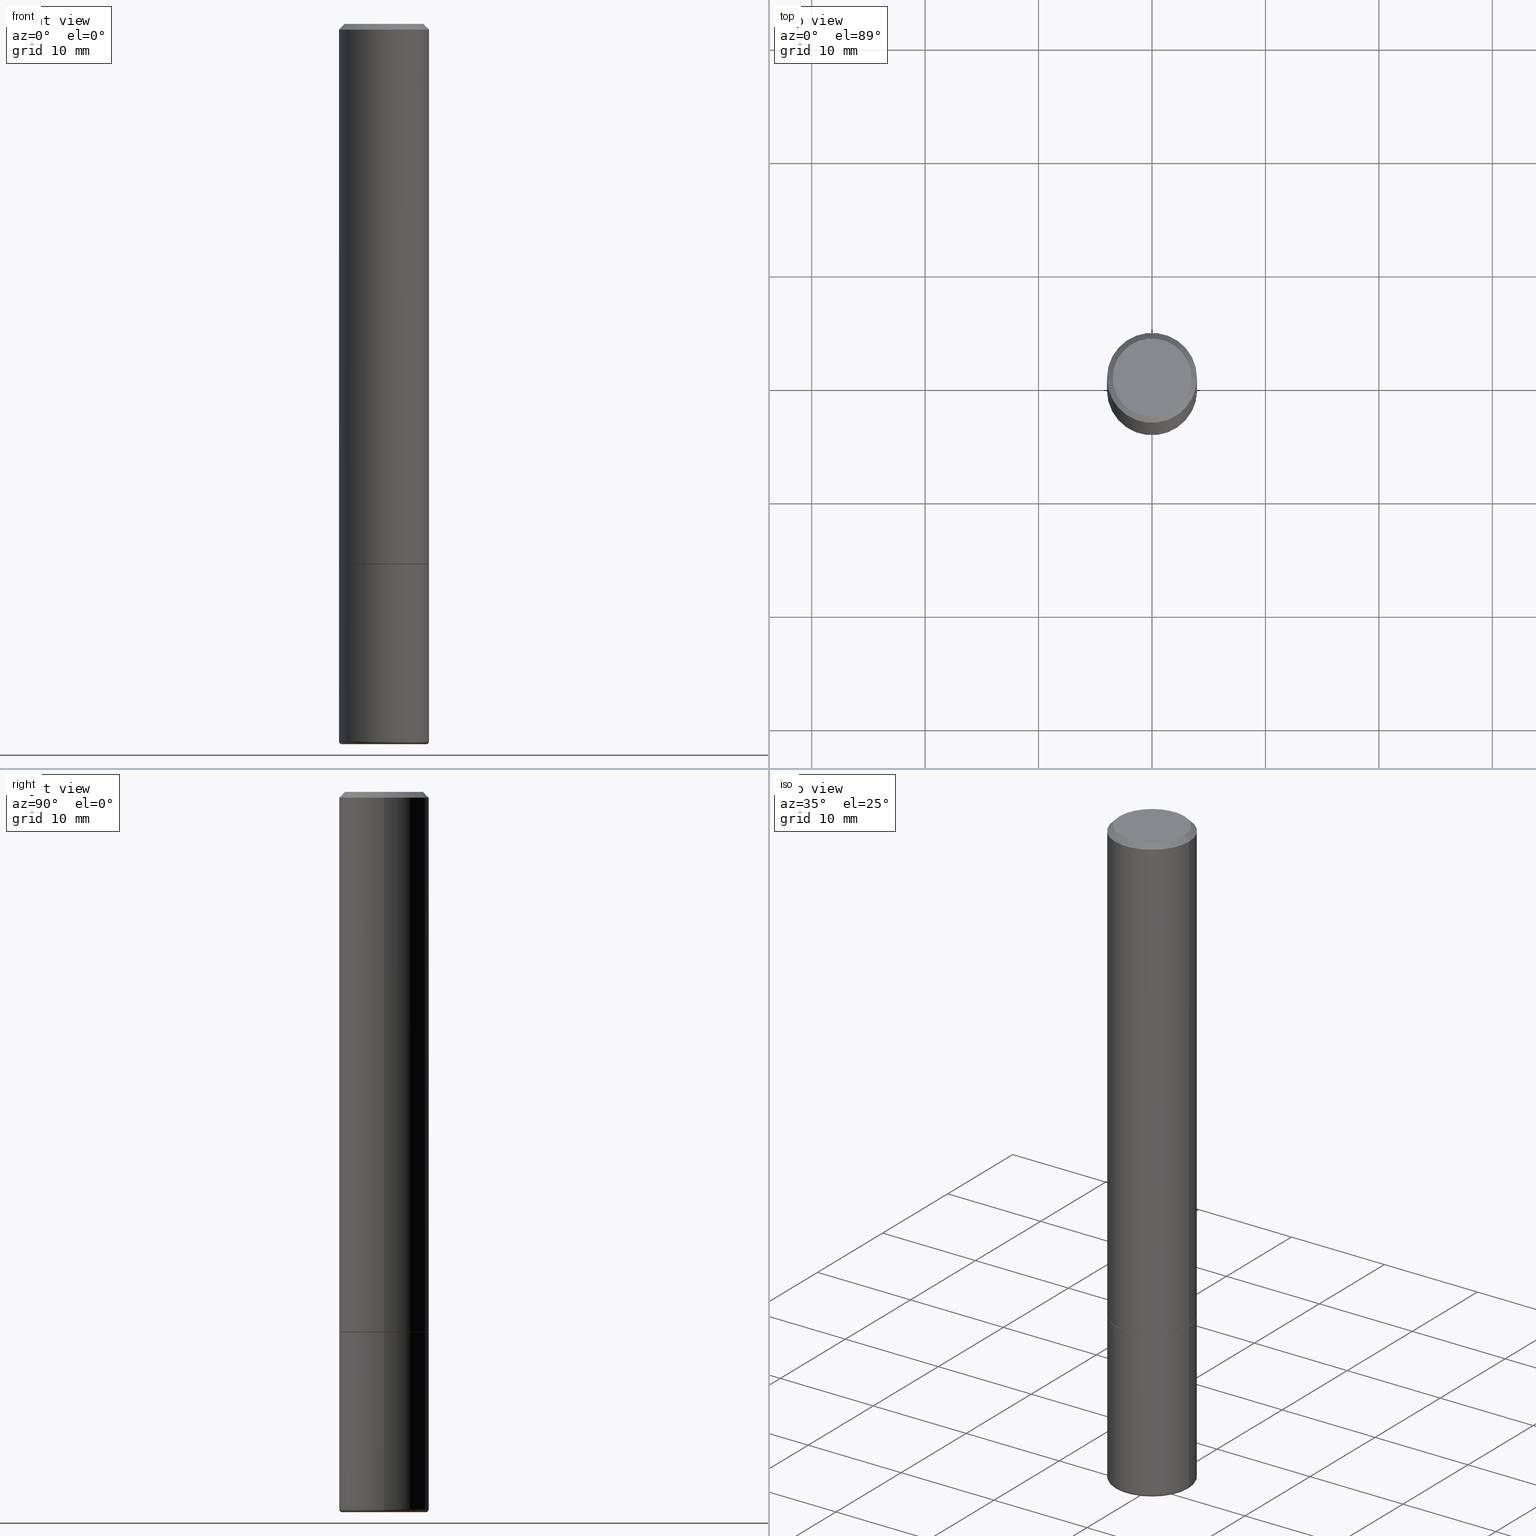
[diagram: canonical four-view strip — front | top / right | iso, engineering-drawing reading convention]
A machine part, canonical four-view strip (front | top / right | iso — engineering-drawing reading convention). The complete STEP part file that produces these views, byte-faithful:
ISO-10303-21;
HEADER;
FILE_DESCRIPTION (( 'STEP AP203' ),
    '1' );
FILE_NAME ('38807.STEP',
    '2024-03-03T13:57:29',
    ( '' ),
    ( '' ),
    'SwSTEP 2.0',
    'SolidWorks 2023',
    '' );
FILE_SCHEMA (( 'CONFIG_CONTROL_DESIGN' ));
ENDSEC;

DATA;
#1 = LOCAL_TIME ( 8, 57, 29.00000000000000000, #282 ) ;
#2 = APPROVAL_ROLE ( '' ) ;
#3 = EDGE_CURVE ( 'NONE', #193, #10, #168, .T. ) ;
#4 = PERSON_AND_ORGANIZATION ( #118, #250 ) ;
#5 = AXIS2_PLACEMENT_3D ( 'NONE', #303, #242, #9 ) ;
#6 = EDGE_CURVE ( 'NONE', #77, #85, #248, .T. ) ;
#7 = ORIENTED_EDGE ( 'NONE', *, *, #260, .T. ) ;
#8 = ORIENTED_EDGE ( 'NONE', *, *, #15, .F. ) ;
#9 = DIRECTION ( 'NONE',  ( 1.000000000000000000, -6.982962677686266711E-15, 4.876176775795936353E-29 ) ) ;
#10 = VERTEX_POINT ( 'NONE', #342 ) ;
#11 = DIRECTION ( 'NONE',  ( 1.000000000000000000, -6.982962677686266711E-15, 4.876176775795936353E-29 ) ) ;
#12 = CIRCLE ( 'NONE', #26, 0.1552499999999999991 ) ;
#13 = EDGE_LOOP ( 'NONE', ( #84, #106 ) ) ;
#14 = DIRECTION ( 'NONE',  ( -2.445468806185136597E-29, 3.491481338843145583E-15, 1.000000000000000000 ) ) ;
#15 = EDGE_CURVE ( 'NONE', #264, #85, #410, .T. ) ;
#16 = VERTEX_POINT ( 'NONE', #61 ) ;
#17 = DIRECTION ( 'NONE',  ( -2.445468806185136597E-29, 3.491481338843145583E-15, 1.000000000000000000 ) ) ;
#18 = CARTESIAN_POINT ( 'NONE',  ( 0.000000000000000000, 0.000000000000000000, 0.000000000000000000 ) ) ;
#19 = DIRECTION ( 'NONE',  ( -2.445468806185136597E-29, 3.491481338843145583E-15, 1.000000000000000000 ) ) ;
#20 = FACE_OUTER_BOUND ( 'NONE', #327, .T. ) ;
#21 = DIRECTION ( 'NONE',  ( -2.445468806185136597E-29, 3.491481338843145583E-15, 1.000000000000000000 ) ) ;
#22 =( NAMED_UNIT ( * ) SI_UNIT ( $, .STERADIAN. ) SOLID_ANGLE_UNIT ( ) );
#23 = ORIENTED_EDGE ( 'NONE', *, *, #3, .T. ) ;
#24 = CALENDAR_DATE ( 2024, 3, 3 ) ;
#25 = DIRECTION ( 'NONE',  ( 1.000000000000000000, -6.982962677686266711E-15, 4.876176775795936353E-29 ) ) ;
#26 = AXIS2_PLACEMENT_3D ( 'NONE', #404, #270, #398 ) ;
#27 = CARTESIAN_POINT ( 'NONE',  ( 0.000000000000000000, 0.000000000000000000, 0.000000000000000000 ) ) ;
#28 = DIRECTION ( 'NONE',  ( 2.445468806185136597E-29, -3.491481338843145583E-15, -1.000000000000000000 ) ) ;
#29 = PERSON_AND_ORGANIZATION ( #118, #250 ) ;
#30 = CARTESIAN_POINT ( 'NONE',  ( 0.1562500000000001388, -1.091087918388480160E-15, 7.619026212181157383E-30 ) ) ;
#31 = PERSON_AND_ORGANIZATION ( #118, #250 ) ;
#32 = CARTESIAN_POINT ( 'NONE',  ( 9.514286648347541549E-16, 0.1362500000000000377, -4.757143324173787538E-16 ) ) ;
#33 = EDGE_CURVE ( 'NONE', #278, #304, #107, .T. ) ;
#34 = AXIS2_PLACEMENT_3D ( 'NONE', #32, #230, #67 ) ;
#35 = CIRCLE ( 'NONE', #411, 0.009999999999999790307 ) ;
#36 = CARTESIAN_POINT ( 'NONE',  ( 4.585254011597131119E-29, -6.546527510330898707E-15, -1.875000000000000000 ) ) ;
#37 = COORDINATED_UNIVERSAL_TIME_OFFSET ( 5, 0, .BEHIND. ) ;
#38 = CC_DESIGN_PERSON_AND_ORGANIZATION_ASSIGNMENT ( #4, #356, ( #294 ) ) ;
#39 = EDGE_LOOP ( 'NONE', ( #231, #81, #143, #23 ) ) ;
#40 =( GEOMETRIC_REPRESENTATION_CONTEXT ( 3 ) GLOBAL_UNCERTAINTY_ASSIGNED_CONTEXT ( ( #226 ) ) GLOBAL_UNIT_ASSIGNED_CONTEXT ( ( #180, #150, #22 ) ) REPRESENTATION_CONTEXT ( 'NONE', 'WORKASPACE' ) );
#41 = ORIENTED_EDGE ( 'NONE', *, *, #69, .F. ) ;
#42 = CARTESIAN_POINT ( 'NONE',  ( 4.582808542790945516E-29, -6.543036028992054911E-15, -1.874000000000000110 ) ) ;
#43 = VERTEX_POINT ( 'NONE', #119 ) ;
#44 = CARTESIAN_POINT ( 'NONE',  ( -0.1562500000000002220, -2.196209803259299803E-15, -1.874000000000000110 ) ) ;
#45 = ORIENTED_EDGE ( 'NONE', *, *, #160, .T. ) ;
#46 = EDGE_CURVE ( 'NONE', #262, #43, #203, .T. ) ;
#47 = CARTESIAN_POINT ( 'NONE',  ( 0.1562500000000000000, -1.091087918388479174E-15, 7.619026212181150377E-30 ) ) ;
#48 = CC_DESIGN_APPROVAL ( #140, ( #321 ) ) ;
#49 = ORIENTED_EDGE ( 'NONE', *, *, #291, .T. ) ;
#50 = CYLINDRICAL_SURFACE ( 'NONE', #223, 0.1562500000000000000 ) ;
#51 = VERTEX_POINT ( 'NONE', #375 ) ;
#52 = CARTESIAN_POINT ( 'NONE',  ( 4.585254011597131119E-29, -6.546527510330898707E-15, -1.875000000000000000 ) ) ;
#53 = EDGE_CURVE ( 'NONE', #278, #10, #307, .T. ) ;
#54 = DIRECTION ( 'NONE',  ( -2.445468806185136597E-29, 3.491481338843145583E-15, 1.000000000000000000 ) ) ;
#55 = CARTESIAN_POINT ( 'NONE',  ( 0.000000000000000000, 0.000000000000000000, 0.000000000000000000 ) ) ;
#56 = DIRECTION ( 'NONE',  ( -2.445468806185136597E-29, 3.491481338843145583E-15, 1.000000000000000000 ) ) ;
#57 = TOROIDAL_SURFACE ( 'NONE', #289, 0.1462500000000000189, 0.009999999999999790307 ) ;
#58 = DIRECTION ( 'NONE',  ( 1.000000000000000000, -6.982962677686268288E-15, 0.000000000000000000 ) ) ;
#59 = FACE_OUTER_BOUND ( 'NONE', #133, .T. ) ;
#60 =( LENGTH_UNIT ( ) NAMED_UNIT ( * ) SI_UNIT ( $, .METRE. ) );
#61 = CARTESIAN_POINT ( 'NONE',  ( 0.1562500000000000000, -7.637615428719378669E-15, -1.875000000000000000 ) ) ;
#62 = EDGE_CURVE ( 'NONE', #138, #329, #387, .T. ) ;
#63 = LINE ( 'NONE', #79, #124 ) ;
#64 = AXIS2_PLACEMENT_3D ( 'NONE', #279, #54, #312 ) ;
#65 = APPROVAL_PERSON_ORGANIZATION ( #29, #140, #68 ) ;
#66 = APPROVAL_DATE_TIME ( #351, #164 ) ;
#67 = DIRECTION ( 'NONE',  ( -1.000000000000000000, 6.982962677686265922E-15, -4.876176775795935793E-29 ) ) ;
#68 = APPROVAL_ROLE ( '' ) ;
#69 = EDGE_CURVE ( 'NONE', #43, #329, #184, .T. ) ;
#70 = DIRECTION ( 'NONE',  ( -1.000000000000000000, 6.982962677686265922E-15, -4.876176775795935793E-29 ) ) ;
#71 = DESIGN_CONTEXT ( 'detailed design', #361, 'design' ) ;
#72 = FACE_OUTER_BOUND ( 'NONE', #362, .T. ) ;
#73 = AXIS2_PLACEMENT_3D ( 'NONE', #216, #179, #87 ) ;
#74 = SECURITY_CLASSIFICATION_LEVEL ( 'unclassified' ) ;
#75 = AXIS2_PLACEMENT_3D ( 'NONE', #334, #268, #265 ) ;
#76 = CC_DESIGN_PERSON_AND_ORGANIZATION_ASSIGNMENT ( #190, #295, ( #321 ) ) ;
#77 = VERTEX_POINT ( 'NONE', #345 ) ;
#78 = EDGE_LOOP ( 'NONE', ( #369, #165, #377, #414 ) ) ;
#79 = CARTESIAN_POINT ( 'NONE',  ( -0.1552499999999999991, -5.443409913063343964E-15, -1.875000000000000000 ) ) ;
#80 = VECTOR ( 'NONE', #331, 39.37007874015748143 ) ;
#81 = ORIENTED_EDGE ( 'NONE', *, *, #83, .F. ) ;
#82 = CYLINDRICAL_SURFACE ( 'NONE', #5, 0.1562500000000000000 ) ;
#83 = EDGE_CURVE ( 'NONE', #304, #278, #116, .T. ) ;
#84 = ORIENTED_EDGE ( 'NONE', *, *, #46, .F. ) ;
#85 = VERTEX_POINT ( 'NONE', #121 ) ;
#86 = PRODUCT ( '38807', '38807', '', ( #122 ) ) ;
#87 = DIRECTION ( 'NONE',  ( -1.000000000000000000, 6.982962677686268288E-15, 0.000000000000000000 ) ) ;
#88 = ADVANCED_FACE ( 'NONE', ( #59 ), #194, .T. ) ;
#89 = DIRECTION ( 'NONE',  ( 1.000000000000000000, -6.982962677686269077E-15, 0.000000000000000000 ) ) ;
#90 = CARTESIAN_POINT ( 'NONE',  ( 4.585254011597131119E-29, -6.546527510330898707E-15, -1.875000000000000000 ) ) ;
#91 = CARTESIAN_POINT ( 'NONE',  ( 6.113672015462840371E-29, -8.728703347107863365E-15, -2.499999999999999556 ) ) ;
#92 = PERSON_AND_ORGANIZATION_ROLE ( 'creator' ) ;
#93 = DIRECTION ( 'NONE',  ( 1.000000000000000000, -6.982962677686268288E-15, 0.000000000000000000 ) ) ;
#94 = AXIS2_PLACEMENT_3D ( 'NONE', #371, #305, #11 ) ;
#95 = PERSON_AND_ORGANIZATION ( #118, #250 ) ;
#96 = DIRECTION ( 'NONE',  ( -2.445468806185136597E-29, 3.491481338843145583E-15, 1.000000000000000000 ) ) ;
#97 = DATE_AND_TIME ( #120, #1 ) ;
#98 = APPLICATION_PROTOCOL_DEFINITION ( 'international standard', 'config_control_design', 1994, #323 ) ;
#99 = AXIS2_PLACEMENT_3D ( 'NONE', #308, #19, #93 ) ;
#100 = AXIS2_PLACEMENT_3D ( 'NONE', #90, #341, #139 ) ;
#101 = DIRECTION ( 'NONE',  ( -2.445468806185136877E-29, 3.491481338843145188E-15, 1.000000000000000000 ) ) ;
#102 = AXIS2_PLACEMENT_3D ( 'NONE', #407, #117, #383 ) ;
#103 = APPROVAL_STATUS ( 'not_yet_approved' ) ;
#104 = LOCAL_TIME ( 8, 57, 29.00000000000000000, #261 ) ;
#105 = EDGE_LOOP ( 'NONE', ( #113, #205 ) ) ;
#106 = ORIENTED_EDGE ( 'NONE', *, *, #237, .F. ) ;
#107 = CIRCLE ( 'NONE', #153, 0.1362500000000000377 ) ;
#108 = LINE ( 'NONE', #253, #330 ) ;
#109 = CIRCLE ( 'NONE', #126, 0.1462500000000000189 ) ;
#110 = ORIENTED_EDGE ( 'NONE', *, *, #33, .F. ) ;
#111 = CYLINDRICAL_SURFACE ( 'NONE', #145, 0.1562500000000001388 ) ;
#112 = ORIENTED_EDGE ( 'NONE', *, *, #46, .T. ) ;
#113 = ORIENTED_EDGE ( 'NONE', *, *, #379, .F. ) ;
#114 = ADVANCED_FACE ( 'NONE', ( #340 ), #275, .T. ) ;
#115 = CARTESIAN_POINT ( 'NONE',  ( 0.000000000000000000, 0.000000000000000000, 0.000000000000000000 ) ) ;
#116 = CIRCLE ( 'NONE', #320, 0.1362500000000000377 ) ;
#117 = DIRECTION ( 'NONE',  ( -2.445468806185136597E-29, 3.491481338843145583E-15, 1.000000000000000000 ) ) ;
#118 = PERSON ( 'UNSPECIFIED', 'UNSPECIFIED', 'UNSPECIFIED', ('UNSPECIFIED'), ('UNSPECIFIED'), ('UNSPECIFIED') ) ;
#119 = CARTESIAN_POINT ( 'NONE',  ( -0.1462500000000000189, -7.636550052576496041E-15, -2.499999999999999556 ) ) ;
#120 = CALENDAR_DATE ( 2024, 3, 3 ) ;
#121 = CARTESIAN_POINT ( 'NONE',  ( 0.1562500000000002220, -7.634123947380535662E-15, -1.874000000000000110 ) ) ;
#122 = MECHANICAL_CONTEXT ( 'NONE', #323, 'mechanical' ) ;
#123 = ADVANCED_FACE ( 'NONE', ( #154 ), #175, .T. ) ;
#124 = VECTOR ( 'NONE', #196, 39.37007874015748143 ) ;
#125 = CARTESIAN_POINT ( 'NONE',  ( 1.263551563285417854E-28, 6.109479132827826125E-16, -2.500000000000000000 ) ) ;
#126 = AXIS2_PLACEMENT_3D ( 'NONE', #368, #210, #401 ) ;
#127 = FACE_OUTER_BOUND ( 'NONE', #300, .T. ) ;
#128 = APPROVAL ( #103, 'UNSPECIFIED' ) ;
#129 = COORDINATED_UNIVERSAL_TIME_OFFSET ( 5, 0, .BEHIND. ) ;
#130 = ADVANCED_FACE ( 'NONE', ( #151 ), #281, .T. ) ;
#131 = AXIS2_PLACEMENT_3D ( 'NONE', #91, #96, #348 ) ;
#132 = ORIENTED_EDGE ( 'NONE', *, *, #299, .T. ) ;
#133 = EDGE_LOOP ( 'NONE', ( #41, #390, #167, #171 ) ) ;
#134 = CARTESIAN_POINT ( 'NONE',  ( -0.1362500000000000377, 9.863434782231852123E-16, -6.775751096333141285E-30 ) ) ;
#135 = VERTEX_POINT ( 'NONE', #416 ) ;
#136 = FACE_OUTER_BOUND ( 'NONE', #197, .T. ) ;
#137 = AXIS2_PLACEMENT_3D ( 'NONE', #52, #144, #276 ) ;
#138 = VERTEX_POINT ( 'NONE', #222 ) ;
#139 = DIRECTION ( 'NONE',  ( 1.000000000000000000, -6.982962677686269077E-15, 0.000000000000000000 ) ) ;
#140 = APPROVAL ( #349, 'UNSPECIFIED' ) ;
#141 = EDGE_LOOP ( 'NONE', ( #367, #132, #191, #8 ) ) ;
#142 = FACE_OUTER_BOUND ( 'NONE', #105, .T. ) ;
#143 = ORIENTED_EDGE ( 'NONE', *, *, #202, .T. ) ;
#144 = DIRECTION ( 'NONE',  ( -2.438088387897960049E-29, 3.491481338843145188E-15, 1.000000000000000000 ) ) ;
#145 = AXIS2_PLACEMENT_3D ( 'NONE', #115, #172, #396 ) ;
#146 = ORIENTED_EDGE ( 'NONE', *, *, #177, .T. ) ;
#147 = LENGTH_MEASURE_WITH_UNIT ( LENGTH_MEASURE( 0.02539999999999999897 ), #60 );
#148 = DIRECTION ( 'NONE',  ( 0.7071067811865957564, -2.468850131082761932E-15, 0.7071067811864992780 ) ) ;
#149 = ADVANCED_FACE ( 'NONE', ( #72 ), #322, .F. ) ;
#150 =( NAMED_UNIT ( * ) PLANE_ANGLE_UNIT ( ) SI_UNIT ( $, .RADIAN. ) );
#151 = FACE_OUTER_BOUND ( 'NONE', #13, .T. ) ;
#152 = DIRECTION ( 'NONE',  ( 1.000000000000000000, 0.000000000000000000, 0.000000000000000000 ) ) ;
#153 = AXIS2_PLACEMENT_3D ( 'NONE', #244, #56, #314 ) ;
#154 = FACE_OUTER_BOUND ( 'NONE', #39, .T. ) ;
#155 = DIRECTION ( 'NONE',  ( -2.445468806185136597E-29, 3.491481338843145583E-15, 1.000000000000000000 ) ) ;
#156 = ADVANCED_FACE ( 'NONE', ( #259 ), #354, .F. ) ;
#157 = FACE_OUTER_BOUND ( 'NONE', #199, .T. ) ;
#158 = FACE_OUTER_BOUND ( 'NONE', #335, .T. ) ;
#159 = AXIS2_PLACEMENT_3D ( 'NONE', #186, #364, #255 ) ;
#160 = EDGE_CURVE ( 'NONE', #10, #193, #418, .T. ) ;
#161 = DATE_AND_TIME ( #389, #104 ) ;
#162 = ORIENTED_EDGE ( 'NONE', *, *, #3, .F. ) ;
#163 = APPROVAL_PERSON_ORGANIZATION ( #384, #164, #417 ) ;
#164 = APPROVAL ( #406, 'UNSPECIFIED' ) ;
#165 = ORIENTED_EDGE ( 'NONE', *, *, #386, .T. ) ;
#166 = DIRECTION ( 'NONE',  ( 1.000000000000000000, -6.982962677686265922E-15, 4.883557194083112340E-29 ) ) ;
#167 = ORIENTED_EDGE ( 'NONE', *, *, #358, .T. ) ;
#168 = CIRCLE ( 'NONE', #102, 0.1562500000000000278 ) ;
#169 = CARTESIAN_POINT ( 'NONE',  ( 0.1462500000000000189, -9.749961638719478451E-15, -2.499999999999999556 ) ) ;
#170 = ORIENTED_EDGE ( 'NONE', *, *, #379, .T. ) ;
#171 = ORIENTED_EDGE ( 'NONE', *, *, #284, .F. ) ;
#172 = DIRECTION ( 'NONE',  ( -2.445468806185136597E-29, 3.491481338843145583E-15, 1.000000000000000000 ) ) ;
#173 = DIRECTION ( 'NONE',  ( -2.445468806185136597E-29, 3.491481338843145583E-15, 1.000000000000000000 ) ) ;
#174 = LINE ( 'NONE', #47, #283 ) ;
#175 = CONICAL_SURFACE ( 'NONE', #73, 0.1562500000000000278, 0.7853981633974472798 ) ;
#176 = DIRECTION ( 'NONE',  ( 0.7071067811865467956, -7.319954787623254468E-15, -0.7071067811865482389 ) ) ;
#177 = EDGE_CURVE ( 'NONE', #85, #10, #317, .T. ) ;
#178 = DIRECTION ( 'NONE',  ( -2.445468806185136877E-29, 3.491481338843145188E-15, 1.000000000000000000 ) ) ;
#179 = DIRECTION ( 'NONE',  ( 2.445468806185136597E-29, -3.491481338843145583E-15, -1.000000000000000000 ) ) ;
#180 =( CONVERSION_BASED_UNIT ( 'INCH', #147 ) LENGTH_UNIT ( ) NAMED_UNIT ( #208 ) );
#181 = CARTESIAN_POINT ( 'NONE',  ( -0.1462500000000000189, -7.654619782670285257E-15, -2.489999999999999769 ) ) ;
#182 = DIRECTION ( 'NONE',  ( -6.982962677686266711E-15, -1.000000000000000000, 3.491481338843145583E-15 ) ) ;
#183 = ADVANCED_FACE ( 'NONE', ( #158 ), #254, .T. ) ;
#184 = CIRCLE ( 'NONE', #292, 0.009999999999999790307 ) ;
#185 = DATE_TIME_ROLE ( 'creation_date' ) ;
#186 = CARTESIAN_POINT ( 'NONE',  ( 4.890937612370281041E-31, -6.982962677686302702E-17, -0.02000000000000003511 ) ) ;
#187 = DIRECTION ( 'NONE',  ( -1.000000000000000000, 6.982962677686268288E-15, 0.000000000000000000 ) ) ;
#188 = AXIS2_PLACEMENT_3D ( 'NONE', #198, #14, #89 ) ;
#189 = EDGE_CURVE ( 'NONE', #51, #264, #63, .T. ) ;
#190 = PERSON_AND_ORGANIZATION ( #118, #250 ) ;
#191 = ORIENTED_EDGE ( 'NONE', *, *, #6, .T. ) ;
#192 = CC_DESIGN_DATE_AND_TIME_ASSIGNMENT ( #363, #256, ( #294 ) ) ;
#193 = VERTEX_POINT ( 'NONE', #350 ) ;
#194 = TOROIDAL_SURFACE ( 'NONE', #365, 0.1462500000000000189, 0.009999999999999790307 ) ;
#195 = CC_DESIGN_APPROVAL ( #128, ( #294 ) ) ;
#196 = DIRECTION ( 'NONE',  ( -0.7071067811865957564, 7.493145998870527710E-15, 0.7071067811864992780 ) ) ;
#197 = EDGE_LOOP ( 'NONE', ( #397, #273, #146, #162 ) ) ;
#198 = CARTESIAN_POINT ( 'NONE',  ( 4.585254011597131119E-29, -6.546527510330898707E-15, -1.875000000000000000 ) ) ;
#199 = EDGE_LOOP ( 'NONE', ( #405, #392, #7, #266 ) ) ;
#200 = DIRECTION ( 'NONE',  ( -2.445468806185136597E-29, 3.491481338843145583E-15, 1.000000000000000000 ) ) ;
#201 = ORIENTED_EDGE ( 'NONE', *, *, #6, .F. ) ;
#202 = EDGE_CURVE ( 'NONE', #304, #193, #288, .T. ) ;
#203 = CIRCLE ( 'NONE', #131, 0.1462500000000000189 ) ;
#204 = FACE_OUTER_BOUND ( 'NONE', #218, .T. ) ;
#205 = ORIENTED_EDGE ( 'NONE', *, *, #299, .F. ) ;
#206 = MANIFOLD_SOLID_BREP ( 'Body-Move/Copy2[1]', #336 ) ;
#207 = PLANE ( 'NONE',  #137 ) ;
#208 = DIMENSIONAL_EXPONENTS ( 1.000000000000000000, 0.000000000000000000, 0.000000000000000000, 0.000000000000000000, 0.000000000000000000, 0.000000000000000000, 0.000000000000000000 ) ;
#209 = ORIENTED_EDGE ( 'NONE', *, *, #33, .T. ) ;
#210 = DIRECTION ( 'NONE',  ( -2.445468806185136597E-29, 3.491481338843145583E-15, 1.000000000000000000 ) ) ;
#211 = EDGE_CURVE ( 'NONE', #85, #264, #309, .T. ) ;
#212 = ORIENTED_EDGE ( 'NONE', *, *, #291, .F. ) ;
#213 = MANIFOLD_SOLID_BREP ( 'Body-Move/Copy2[2]', #394 ) ;
#214 = AXIS2_PLACEMENT_3D ( 'NONE', #36, #385, #70 ) ;
#215 = ADVANCED_BREP_SHAPE_REPRESENTATION ( '38807', ( #206, #213, #277 ), #40 ) ;
#216 = CARTESIAN_POINT ( 'NONE',  ( 4.890937612370281041E-31, -6.982962677686302702E-17, -0.02000000000000003511 ) ) ;
#217 = DIRECTION ( 'NONE',  ( -2.445468806185136597E-29, 3.491481338843145583E-15, 1.000000000000000000 ) ) ;
#218 = EDGE_LOOP ( 'NONE', ( #269, #366, #212, #400 ) ) ;
#219 = ADVANCED_FACE ( 'NONE', ( #127 ), #57, .T. ) ;
#220 = CARTESIAN_POINT ( 'NONE',  ( 4.890937612370281041E-31, -6.982962677686302702E-17, -0.02000000000000003511 ) ) ;
#221 = PERSON_AND_ORGANIZATION_ROLE ( 'design_owner' ) ;
#222 = CARTESIAN_POINT ( 'NONE',  ( 0.1562499999999998612, -9.784876452107911678E-15, -2.489999999999999769 ) ) ;
#223 = AXIS2_PLACEMENT_3D ( 'NONE', #55, #17, #236 ) ;
#224 = CALENDAR_DATE ( 2024, 3, 3 ) ;
#225 = CARTESIAN_POINT ( 'NONE',  ( -0.1562500000000000278, 1.021258291611616467E-15, -0.02000000000000003511 ) ) ;
#226 = UNCERTAINTY_MEASURE_WITH_UNIT (LENGTH_MEASURE( 1.000000000000000082E-05 ), #180, 'distance_accuracy_value', 'NONE');
#227 = LOCAL_TIME ( 8, 57, 29.00000000000000000, #378 ) ;
#228 = ADVANCED_FACE ( 'NONE', ( #157 ), #82, .T. ) ;
#229 = ORIENTED_EDGE ( 'NONE', *, *, #211, .F. ) ;
#230 = DIRECTION ( 'NONE',  ( 2.438088387897960049E-29, -3.491481338843145188E-15, -1.000000000000000000 ) ) ;
#231 = ORIENTED_EDGE ( 'NONE', *, *, #53, .F. ) ;
#232 = AXIS2_PLACEMENT_3D ( 'NONE', #42, #319, #297 ) ;
#233 = CIRCLE ( 'NONE', #100, 0.1562500000000000000 ) ;
#234 = DIRECTION ( 'NONE',  ( -2.445468806185136877E-29, 3.491481338843145188E-15, 1.000000000000000000 ) ) ;
#235 = EDGE_LOOP ( 'NONE', ( #395, #209 ) ) ;
#236 = DIRECTION ( 'NONE',  ( 1.000000000000000000, -6.982962677686266711E-15, 4.876176775795936353E-29 ) ) ;
#237 = EDGE_CURVE ( 'NONE', #43, #262, #109, .T. ) ;
#238 = ORIENTED_EDGE ( 'NONE', *, *, #358, .F. ) ;
#239 = CARTESIAN_POINT ( 'NONE',  ( 0.1362500000000000377, -1.038262645562518322E-15, 6.957025900226697878E-30 ) ) ;
#240 = CARTESIAN_POINT ( 'NONE',  ( 6.089217327400989947E-29, -8.693788533719431716E-15, -2.489999999999999769 ) ) ;
#241 = VECTOR ( 'NONE', #148, 39.37007874015748143 ) ;
#242 = DIRECTION ( 'NONE',  ( -2.445468806185136597E-29, 3.491481338843145583E-15, 1.000000000000000000 ) ) ;
#243 = CONICAL_SURFACE ( 'NONE', #302, 0.1552499999999999991, 0.7853981633975165577 ) ;
#244 = CARTESIAN_POINT ( 'NONE',  ( 0.000000000000000000, 0.000000000000000000, 0.000000000000000000 ) ) ;
#245 = CC_DESIGN_PERSON_AND_ORGANIZATION_ASSIGNMENT ( #247, #221, ( #86 ) ) ;
#246 = CARTESIAN_POINT ( 'NONE',  ( 4.582808542790945516E-29, -6.543036028992054911E-15, -1.874000000000000110 ) ) ;
#247 = PERSON_AND_ORGANIZATION ( #118, #250 ) ;
#248 = LINE ( 'NONE', #380, #241 ) ;
#249 = AXIS2_PLACEMENT_3D ( 'NONE', #246, #21, #402 ) ;
#250 = ORGANIZATION ( 'UNSPECIFIED', 'UNSPECIFIED', '' ) ;
#251 = DIRECTION ( 'NONE',  ( 2.438088387897960049E-29, -3.491481338843145188E-15, -1.000000000000000000 ) ) ;
#252 = CC_DESIGN_DATE_AND_TIME_ASSIGNMENT ( #97, #185, ( #399 ) ) ;
#253 = CARTESIAN_POINT ( 'NONE',  ( -0.1562500000000000000, 1.110223024625156540E-15, -7.685836078523291160E-30 ) ) ;
#254 = CONICAL_SURFACE ( 'NONE', #381, 0.1562500000000000278, 0.7853981633974472798 ) ;
#255 = DIRECTION ( 'NONE',  ( 1.000000000000000000, -6.982962677686266711E-15, 0.000000000000000000 ) ) ;
#256 = DATE_TIME_ROLE ( 'classification_date' ) ;
#257 = DIRECTION ( 'NONE',  ( -1.000000000000000000, 6.982962677686265922E-15, -4.876176775795935793E-29 ) ) ;
#258 = APPROVAL_DATE_TIME ( #355, #140 ) ;
#259 = FACE_OUTER_BOUND ( 'NONE', #235, .T. ) ;
#260 = EDGE_CURVE ( 'NONE', #138, #16, #174, .T. ) ;
#261 = COORDINATED_UNIVERSAL_TIME_OFFSET ( 5, 0, .BEHIND. ) ;
#262 = VERTEX_POINT ( 'NONE', #169 ) ;
#263 = CALENDAR_DATE ( 2024, 3, 3 ) ;
#264 = VERTEX_POINT ( 'NONE', #44 ) ;
#265 = DIRECTION ( 'NONE',  ( 1.000000000000000000, -6.982962677686270655E-15, 0.000000000000000000 ) ) ;
#266 = ORIENTED_EDGE ( 'NONE', *, *, #274, .F. ) ;
#267 = LOCAL_TIME ( 8, 57, 29.00000000000000000, #129 ) ;
#268 = DIRECTION ( 'NONE',  ( -2.445468806185136597E-29, 3.491481338843145583E-15, 1.000000000000000000 ) ) ;
#269 = ORIENTED_EDGE ( 'NONE', *, *, #62, .T. ) ;
#270 = DIRECTION ( 'NONE',  ( -2.445468806185136597E-29, 3.491481338843145583E-15, 1.000000000000000000 ) ) ;
#271 = ORIENTED_EDGE ( 'NONE', *, *, #69, .T. ) ;
#272 = CYLINDRICAL_SURFACE ( 'NONE', #94, 0.1562500000000001388 ) ;
#273 = ORIENTED_EDGE ( 'NONE', *, *, #15, .T. ) ;
#274 = EDGE_CURVE ( 'NONE', #135, #16, #315, .T. ) ;
#275 = CONICAL_SURFACE ( 'NONE', #99, 0.1552499999999999991, 0.7853981633975165577 ) ;
#276 = DIRECTION ( 'NONE',  ( 1.000000000000000000, -6.982962677686265922E-15, 4.876176775795935793E-29 ) ) ;
#277 = AXIS2_PLACEMENT_3D ( 'NONE', #27, #347, #152 ) ;
#278 = VERTEX_POINT ( 'NONE', #239 ) ;
#279 = CARTESIAN_POINT ( 'NONE',  ( 6.089217327400989947E-29, -8.693788533719431716E-15, -2.489999999999999769 ) ) ;
#280 = APPLICATION_PROTOCOL_DEFINITION ( 'international standard', 'config_control_design', 1994, #361 ) ;
#281 = PLANE ( 'NONE',  #301 ) ;
#282 = COORDINATED_UNIVERSAL_TIME_OFFSET ( 5, 0, .BEHIND. ) ;
#283 = VECTOR ( 'NONE', #234, 39.37007874015748143 ) ;
#284 = EDGE_CURVE ( 'NONE', #329, #138, #403, .T. ) ;
#285 = CARTESIAN_POINT ( 'NONE',  ( 0.1562500000000000278, -1.141782438928665105E-15, -0.02000000000000003511 ) ) ;
#286 = LINE ( 'NONE', #415, #374 ) ;
#287 = DIRECTION ( 'NONE',  ( -2.445468806185136877E-29, 3.491481338843145188E-15, 1.000000000000000000 ) ) ;
#288 = LINE ( 'NONE', #225, #80 ) ;
#289 = AXIS2_PLACEMENT_3D ( 'NONE', #376, #200, #166 ) ;
#290 = LOCAL_TIME ( 8, 57, 29.00000000000000000, #37 ) ;
#291 = EDGE_CURVE ( 'NONE', #16, #135, #233, .T. ) ;
#292 = AXIS2_PLACEMENT_3D ( 'NONE', #181, #311, #372 ) ;
#293 = ORIENTED_EDGE ( 'NONE', *, *, #189, .T. ) ;
#294 = SECURITY_CLASSIFICATION ( '', '', #74 ) ;
#295 = PERSON_AND_ORGANIZATION_ROLE ( 'creator' ) ;
#296 = ORIENTED_EDGE ( 'NONE', *, *, #274, .T. ) ;
#297 = DIRECTION ( 'NONE',  ( 1.000000000000000000, -6.982962677686265922E-15, 0.000000000000000000 ) ) ;
#298 = ORIENTED_EDGE ( 'NONE', *, *, #53, .T. ) ;
#299 = EDGE_CURVE ( 'NONE', #51, #77, #12, .T. ) ;
#300 = EDGE_LOOP ( 'NONE', ( #112, #271, #360, #238 ) ) ;
#301 = AXIS2_PLACEMENT_3D ( 'NONE', #125, #251, #257 ) ;
#302 = AXIS2_PLACEMENT_3D ( 'NONE', #408, #155, #412 ) ;
#303 = CARTESIAN_POINT ( 'NONE',  ( 0.000000000000000000, 0.000000000000000000, 0.000000000000000000 ) ) ;
#304 = VERTEX_POINT ( 'NONE', #134 ) ;
#305 = DIRECTION ( 'NONE',  ( -2.445468806185136597E-29, 3.491481338843145583E-15, 1.000000000000000000 ) ) ;
#306 = ADVANCED_FACE ( 'NONE', ( #333 ), #272, .T. ) ;
#307 = LINE ( 'NONE', #285, #373 ) ;
#308 = CARTESIAN_POINT ( 'NONE',  ( 4.585254011597131119E-29, -6.546527510330898707E-15, -1.875000000000000000 ) ) ;
#309 = CIRCLE ( 'NONE', #232, 0.1562500000000002220 ) ;
#310 = DIRECTION ( 'NONE',  ( 1.000000000000000000, -6.982962677686284854E-15, 0.000000000000000000 ) ) ;
#311 = DIRECTION ( 'NONE',  ( 7.105427357601001859E-15, 1.000000000000000000, -3.491481338843145583E-15 ) ) ;
#312 = DIRECTION ( 'NONE',  ( 1.000000000000000000, -6.982962677686270655E-15, 0.000000000000000000 ) ) ;
#313 = CARTESIAN_POINT ( 'NONE',  ( 4.585254011597131119E-29, -6.546527510330898707E-15, -1.875000000000000000 ) ) ;
#314 = DIRECTION ( 'NONE',  ( 1.000000000000000000, -6.982962677686266711E-15, 4.876176775795936353E-29 ) ) ;
#315 = CIRCLE ( 'NONE', #188, 0.1562500000000000000 ) ;
#316 = ADVANCED_FACE ( 'NONE', ( #136 ), #111, .T. ) ;
#317 = LINE ( 'NONE', #30, #328 ) ;
#318 = PERSON_AND_ORGANIZATION_ROLE ( 'design_supplier' ) ;
#319 = DIRECTION ( 'NONE',  ( -2.445468806185136597E-29, 3.491481338843145583E-15, 1.000000000000000000 ) ) ;
#320 = AXIS2_PLACEMENT_3D ( 'NONE', #18, #339, #25 ) ;
#321 = PRODUCT_DEFINITION_FORMATION_WITH_SPECIFIED_SOURCE ( 'ANY', '', #86, .NOT_KNOWN. ) ;
#322 = PLANE ( 'NONE',  #214 ) ;
#323 = APPLICATION_CONTEXT ( 'configuration controlled 3d designs of mechanical parts and assemblies' ) ;
#324 = SHAPE_DEFINITION_REPRESENTATION ( #388, #215 ) ;
#325 = APPROVAL_DATE_TIME ( #161, #128 ) ;
#326 = CC_DESIGN_PERSON_AND_ORGANIZATION_ASSIGNMENT ( #95, #92, ( #399 ) ) ;
#327 = EDGE_LOOP ( 'NONE', ( #170, #293, #229, #201 ) ) ;
#328 = VECTOR ( 'NONE', #101, 39.37007874015748143 ) ;
#329 = VERTEX_POINT ( 'NONE', #393 ) ;
#330 = VECTOR ( 'NONE', #287, 39.37007874015748143 ) ;
#331 = DIRECTION ( 'NONE',  ( -0.7071067811865467956, 2.468850131082249172E-15, -0.7071067811865482389 ) ) ;
#332 = ORIENTED_EDGE ( 'NONE', *, *, #202, .F. ) ;
#333 = FACE_OUTER_BOUND ( 'NONE', #78, .T. ) ;
#334 = CARTESIAN_POINT ( 'NONE',  ( 6.089217327400989947E-29, -8.693788533719431716E-15, -2.489999999999999769 ) ) ;
#335 = EDGE_LOOP ( 'NONE', ( #110, #298, #45, #332 ) ) ;
#336 = CLOSED_SHELL ( 'NONE', ( #338, #219, #149, #228, #88, #130 ) ) ;
#337 = CC_DESIGN_SECURITY_CLASSIFICATION ( #294, ( #321 ) ) ;
#338 = ADVANCED_FACE ( 'NONE', ( #204 ), #50, .T. ) ;
#339 = DIRECTION ( 'NONE',  ( -2.445468806185136597E-29, 3.491481338843145583E-15, 1.000000000000000000 ) ) ;
#340 = FACE_OUTER_BOUND ( 'NONE', #141, .T. ) ;
#341 = DIRECTION ( 'NONE',  ( -2.445468806185136597E-29, 3.491481338843145583E-15, 1.000000000000000000 ) ) ;
#342 = CARTESIAN_POINT ( 'NONE',  ( 0.1562500000000000278, -1.141782438928665105E-15, -0.02000000000000003511 ) ) ;
#343 = CARTESIAN_POINT ( 'NONE',  ( 0.1462500000000000189, -9.715046825331048380E-15, -2.489999999999999769 ) ) ;
#344 = APPROVAL_PERSON_ORGANIZATION ( #359, #128, #2 ) ;
#345 = CARTESIAN_POINT ( 'NONE',  ( 0.1552499999999999991, -7.630632466041692655E-15, -1.875000000000000000 ) ) ;
#346 = ADVANCED_FACE ( 'NONE', ( #142 ), #207, .F. ) ;
#347 = DIRECTION ( 'NONE',  ( 0.000000000000000000, 0.000000000000000000, 1.000000000000000000 ) ) ;
#348 = DIRECTION ( 'NONE',  ( 1.000000000000000000, -6.982962677686264344E-15, 0.000000000000000000 ) ) ;
#349 = APPROVAL_STATUS ( 'not_yet_approved' ) ;
#350 = CARTESIAN_POINT ( 'NONE',  ( -0.1562500000000000278, 1.021258291611616467E-15, -0.02000000000000003511 ) ) ;
#351 = DATE_AND_TIME ( #24, #227 ) ;
#352 = EDGE_CURVE ( 'NONE', #329, #135, #108, .T. ) ;
#353 = CIRCLE ( 'NONE', #382, 0.1552499999999999991 ) ;
#354 = PLANE ( 'NONE',  #34 ) ;
#355 = DATE_AND_TIME ( #224, #267 ) ;
#356 = PERSON_AND_ORGANIZATION_ROLE ( 'classification_officer' ) ;
#357 = CC_DESIGN_APPROVAL ( #164, ( #399 ) ) ;
#358 = EDGE_CURVE ( 'NONE', #262, #138, #35, .T. ) ;
#359 = PERSON_AND_ORGANIZATION ( #118, #250 ) ;
#360 = ORIENTED_EDGE ( 'NONE', *, *, #62, .F. ) ;
#361 = APPLICATION_CONTEXT ( 'configuration controlled 3d designs of mechanical parts and assemblies' ) ;
#362 = EDGE_LOOP ( 'NONE', ( #49, #296 ) ) ;
#363 = DATE_AND_TIME ( #263, #290 ) ;
#364 = DIRECTION ( 'NONE',  ( -2.445468806185136597E-29, 3.491481338843145583E-15, 1.000000000000000000 ) ) ;
#365 = AXIS2_PLACEMENT_3D ( 'NONE', #240, #173, #409 ) ;
#366 = ORIENTED_EDGE ( 'NONE', *, *, #352, .T. ) ;
#367 = ORIENTED_EDGE ( 'NONE', *, *, #189, .F. ) ;
#368 = CARTESIAN_POINT ( 'NONE',  ( 6.113672015462840371E-29, -8.728703347107863365E-15, -2.499999999999999556 ) ) ;
#369 = ORIENTED_EDGE ( 'NONE', *, *, #211, .T. ) ;
#370 = ADVANCED_FACE ( 'NONE', ( #20 ), #243, .T. ) ;
#371 = CARTESIAN_POINT ( 'NONE',  ( 0.000000000000000000, 0.000000000000000000, 0.000000000000000000 ) ) ;
#372 = DIRECTION ( 'NONE',  ( -1.000000000000000000, 7.105427357600978193E-15, 0.000000000000000000 ) ) ;
#373 = VECTOR ( 'NONE', #176, 39.37007874015748143 ) ;
#374 = VECTOR ( 'NONE', #178, 39.37007874015748143 ) ;
#375 = CARTESIAN_POINT ( 'NONE',  ( -0.1552499999999999991, -5.438111458715120773E-15, -1.875000000000000000 ) ) ;
#376 = CARTESIAN_POINT ( 'NONE',  ( 6.089217327400989947E-29, -8.693788533719431716E-15, -2.489999999999999769 ) ) ;
#377 = ORIENTED_EDGE ( 'NONE', *, *, #160, .F. ) ;
#378 = COORDINATED_UNIVERSAL_TIME_OFFSET ( 5, 0, .BEHIND. ) ;
#379 = EDGE_CURVE ( 'NONE', #77, #51, #353, .T. ) ;
#380 = CARTESIAN_POINT ( 'NONE',  ( 0.1552499999999999991, -7.630632466041692655E-15, -1.875000000000000000 ) ) ;
#381 = AXIS2_PLACEMENT_3D ( 'NONE', #220, #28, #187 ) ;
#382 = AXIS2_PLACEMENT_3D ( 'NONE', #313, #217, #58 ) ;
#383 = DIRECTION ( 'NONE',  ( 1.000000000000000000, -6.982962677686266711E-15, 0.000000000000000000 ) ) ;
#384 = PERSON_AND_ORGANIZATION ( #118, #250 ) ;
#385 = DIRECTION ( 'NONE',  ( 2.438088387897960049E-29, -3.491481338843145188E-15, -1.000000000000000000 ) ) ;
#386 = EDGE_CURVE ( 'NONE', #264, #193, #286, .T. ) ;
#387 = CIRCLE ( 'NONE', #64, 0.1562499999999999722 ) ;
#388 = PRODUCT_DEFINITION_SHAPE ( 'NONE', 'NONE',  #399 ) ;
#389 = CALENDAR_DATE ( 2024, 3, 3 ) ;
#390 = ORIENTED_EDGE ( 'NONE', *, *, #237, .T. ) ;
#391 = PRODUCT_RELATED_PRODUCT_CATEGORY ( 'detail', '', ( #86 ) ) ;
#392 = ORIENTED_EDGE ( 'NONE', *, *, #284, .T. ) ;
#393 = CARTESIAN_POINT ( 'NONE',  ( -0.1562499999999998612, -7.583565509094276753E-15, -2.489999999999999769 ) ) ;
#394 = CLOSED_SHELL ( 'NONE', ( #370, #306, #183, #123, #316, #114, #346, #156 ) ) ;
#395 = ORIENTED_EDGE ( 'NONE', *, *, #83, .T. ) ;
#396 = DIRECTION ( 'NONE',  ( 1.000000000000000000, -6.982962677686266711E-15, 4.876176775795936353E-29 ) ) ;
#397 = ORIENTED_EDGE ( 'NONE', *, *, #386, .F. ) ;
#398 = DIRECTION ( 'NONE',  ( 1.000000000000000000, -6.982962677686268288E-15, 0.000000000000000000 ) ) ;
#399 = PRODUCT_DEFINITION ( 'UNKNOWN', '', #321, #71 ) ;
#400 = ORIENTED_EDGE ( 'NONE', *, *, #260, .F. ) ;
#401 = DIRECTION ( 'NONE',  ( 1.000000000000000000, -6.982962677686264344E-15, 0.000000000000000000 ) ) ;
#402 = DIRECTION ( 'NONE',  ( 1.000000000000000000, -6.982962677686265922E-15, 0.000000000000000000 ) ) ;
#403 = CIRCLE ( 'NONE', #75, 0.1562499999999999722 ) ;
#404 = CARTESIAN_POINT ( 'NONE',  ( 4.585254011597131119E-29, -6.546527510330898707E-15, -1.875000000000000000 ) ) ;
#405 = ORIENTED_EDGE ( 'NONE', *, *, #352, .F. ) ;
#406 = APPROVAL_STATUS ( 'not_yet_approved' ) ;
#407 = CARTESIAN_POINT ( 'NONE',  ( 4.890937612370281041E-31, -6.982962677686302702E-17, -0.02000000000000003511 ) ) ;
#408 = CARTESIAN_POINT ( 'NONE',  ( 4.585254011597131119E-29, -6.546527510330898707E-15, -1.875000000000000000 ) ) ;
#409 = DIRECTION ( 'NONE',  ( 1.000000000000000000, -6.982962677686265922E-15, 4.883557194083112340E-29 ) ) ;
#410 = CIRCLE ( 'NONE', #249, 0.1562500000000002220 ) ;
#411 = AXIS2_PLACEMENT_3D ( 'NONE', #343, #182, #310 ) ;
#412 = DIRECTION ( 'NONE',  ( 1.000000000000000000, -6.982962677686268288E-15, 0.000000000000000000 ) ) ;
#413 = CC_DESIGN_PERSON_AND_ORGANIZATION_ASSIGNMENT ( #31, #318, ( #321 ) ) ;
#414 = ORIENTED_EDGE ( 'NONE', *, *, #177, .F. ) ;
#415 = CARTESIAN_POINT ( 'NONE',  ( -0.1562500000000001388, 1.110223024625157526E-15, -7.685836078523296765E-30 ) ) ;
#416 = CARTESIAN_POINT ( 'NONE',  ( -0.1562500000000000000, -6.509934997400009460E-15, -1.875000000000000000 ) ) ;
#417 = APPROVAL_ROLE ( '' ) ;
#418 = CIRCLE ( 'NONE', #159, 0.1562500000000000278 ) ;
ENDSEC;
END-ISO-10303-21;
